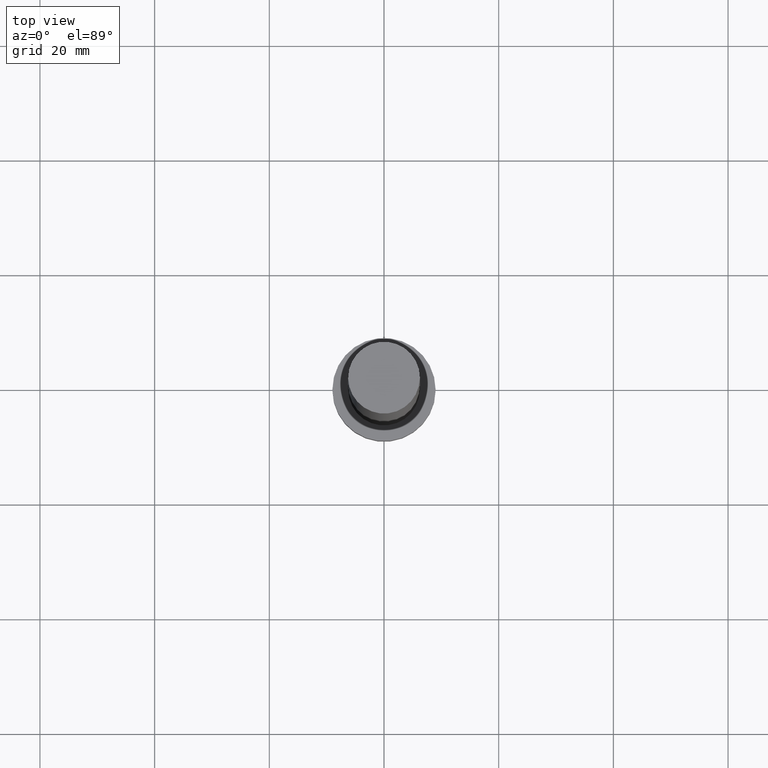
[diagram: clean part render]
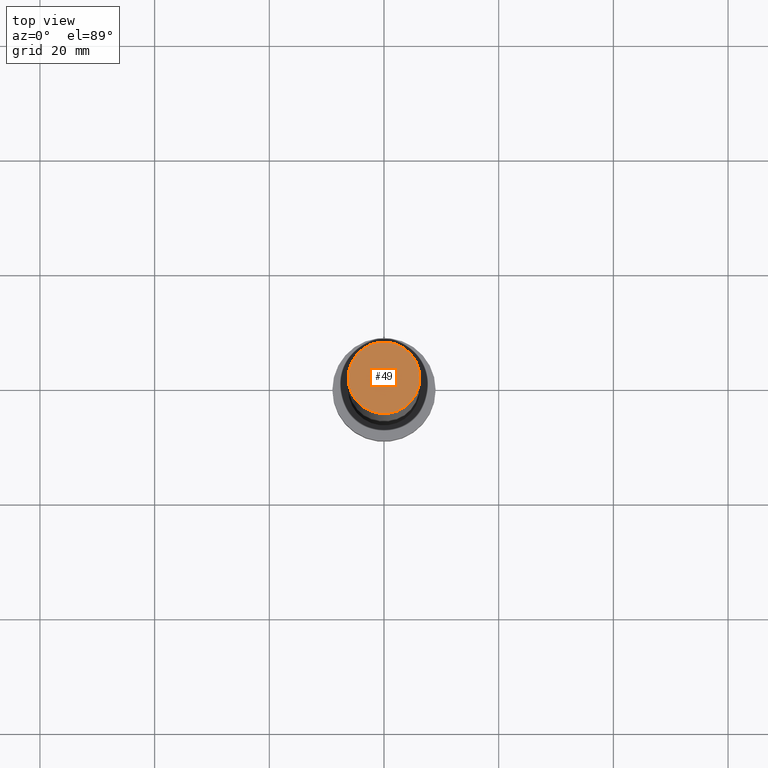
[diagram: same view with one face highlighted and labeled with its STEP entity id]
A machine part, top view. The second image highlights one B-rep face of the part: STEP entity #49.
In plain terms, the highlighted planar face has unit normal (0, 0, 1).
Its self-contained STEP definition (entity closure, byte-faithful):
#9 = CARTESIAN_POINT ( 'NONE',  ( 0.000000000000000000, 0.000000000000000000, 125.0000000000000000 ) ) ;
#17 = CARTESIAN_POINT ( 'NONE',  ( -6.250000000000000000, 0.000000000000000000, 125.0000000000000000 ) ) ;
#21 = EDGE_CURVE ( 'NONE', #212, #53, #73, .T. ) ;
#23 = PLANE ( 'NONE',  #104 ) ;
#38 = CARTESIAN_POINT ( 'NONE',  ( 0.000000000000000000, 0.000000000000000000, 125.0000000000000000 ) ) ;
#49 = ADVANCED_FACE ( 'NONE', ( #195 ), #23, .T. ) ;
#53 = VERTEX_POINT ( 'NONE', #17 ) ;
#73 = CIRCLE ( 'NONE', #175, 6.250000000000000000 ) ;
#98 = DIRECTION ( 'NONE',  ( 1.000000000000000000, 0.000000000000000000, 0.000000000000000000 ) ) ;
#104 = AXIS2_PLACEMENT_3D ( 'NONE', #9, #142, #221 ) ;
#141 = EDGE_CURVE ( 'NONE', #53, #212, #252, .T. ) ;
#142 = DIRECTION ( 'NONE',  ( 0.000000000000000000, 0.000000000000000000, 1.000000000000000000 ) ) ;
#163 = CARTESIAN_POINT ( 'NONE',  ( 0.000000000000000000, 0.000000000000000000, 125.0000000000000000 ) ) ;
#165 = DIRECTION ( 'NONE',  ( 1.000000000000000000, 0.000000000000000000, 0.000000000000000000 ) ) ;
#175 = AXIS2_PLACEMENT_3D ( 'NONE', #38, #245, #98 ) ;
#176 = DIRECTION ( 'NONE',  ( 0.000000000000000000, 0.000000000000000000, 1.000000000000000000 ) ) ;
#180 = ORIENTED_EDGE ( 'NONE', *, *, #21, .T. ) ;
#184 = EDGE_LOOP ( 'NONE', ( #211, #180 ) ) ;
#195 = FACE_OUTER_BOUND ( 'NONE', #184, .T. ) ;
#211 = ORIENTED_EDGE ( 'NONE', *, *, #141, .T. ) ;
#212 = VERTEX_POINT ( 'NONE', #233 ) ;
#221 = DIRECTION ( 'NONE',  ( 1.000000000000000000, 0.000000000000000000, -0.000000000000000000 ) ) ;
#232 = AXIS2_PLACEMENT_3D ( 'NONE', #163, #176, #165 ) ;
#233 = CARTESIAN_POINT ( 'NONE',  ( 6.250000000000000000, 7.654042494670957606E-16, 125.0000000000000000 ) ) ;
#245 = DIRECTION ( 'NONE',  ( 0.000000000000000000, 0.000000000000000000, 1.000000000000000000 ) ) ;
#252 = CIRCLE ( 'NONE', #232, 6.250000000000000000 ) ;